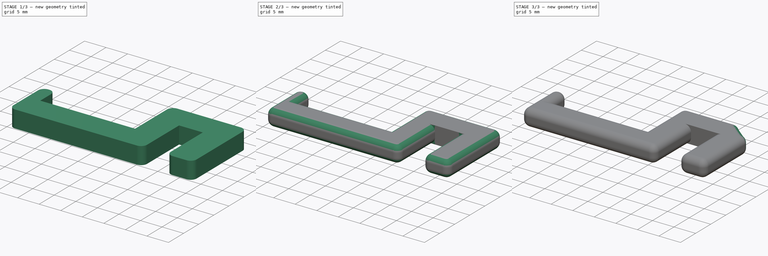
[diagram: build sequence overview — one tinted view per stage of 3, left to right]
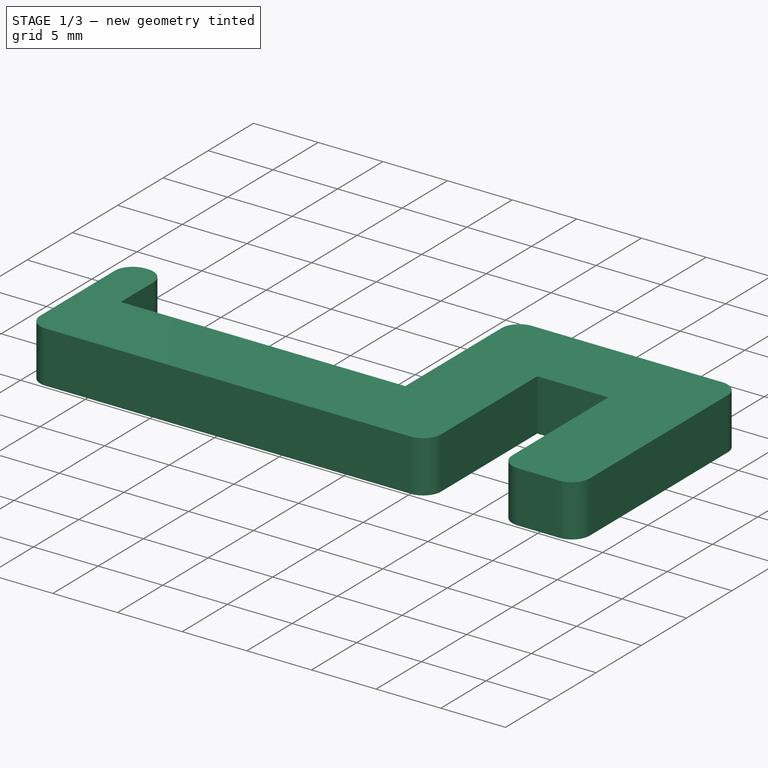
[diagram: stage 1 of 3 — iso view after this stage's code; geometry added in this stage tinted green]
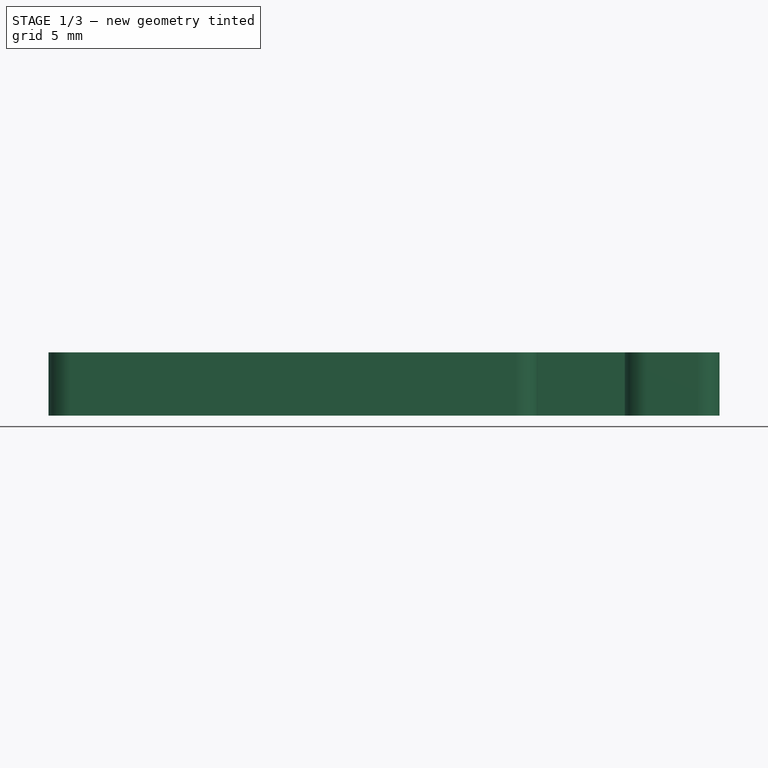
[diagram: stage 1 of 3 — front view after this stage's code; geometry added in this stage tinted green]
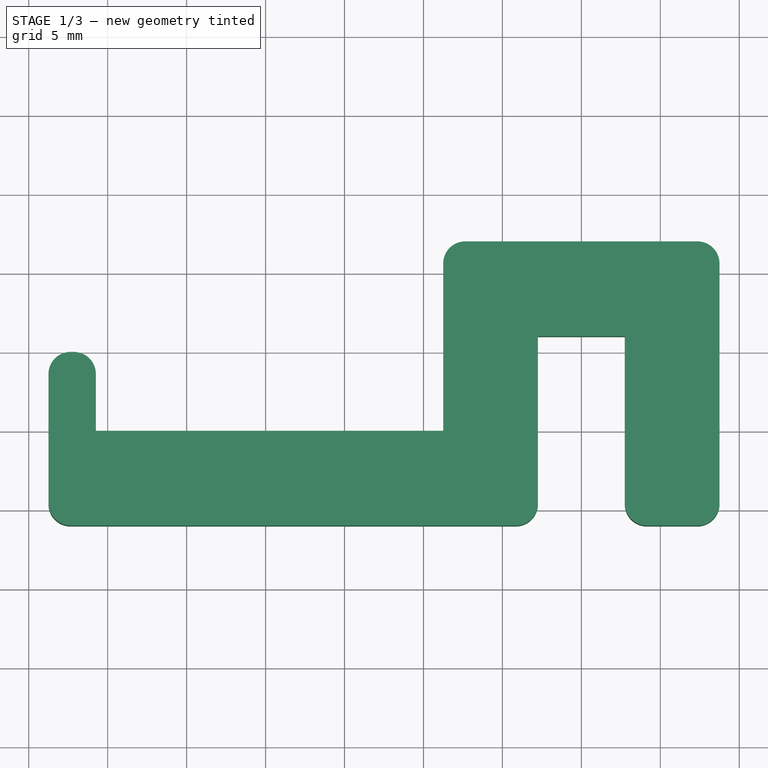
[diagram: stage 1 of 3 — top view after this stage's code; geometry added in this stage tinted green]
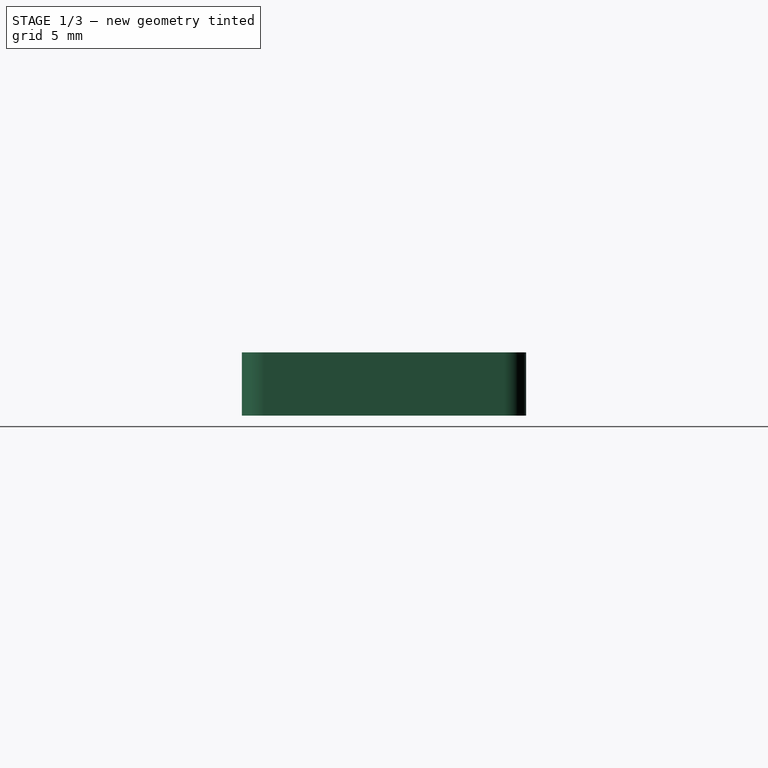
[diagram: stage 1 of 3 — right view after this stage's code; geometry added in this stage tinted green]
FCSTD DOCUMENT  (FreeCAD 0.21R33694 (Git))
Label: 宜家洞洞板-钳表挂钩
License: All rights reserved
LicenseURL: http://en.wikipedia.org/wiki/All_rights_reserved
objects: PartDesign::Fillet×3, Sketcher::SketchObject×2, PartDesign::Pad×1, PartDesign::Pocket×1, PartDesign::Body×1
note: 13 computed .brp shape members not serialized (recipe doc carries the construction recipe); baked Part::Feature solids carry a one-line shape summary decoded from their .brp

FEATURE [Sketcher::SketchObject] Sketch
  FullyConstrained = true
  MapMode = 5
  Support = -> [XY_Plane]
  sketch-geometry (13):
    g0: LineSegment StartX=2.75 StartY=-6 StartZ=0 EndX=8.75 EndY=-6 EndZ=0
    g1: LineSegment StartX=8.75 StartY=-6 StartZ=0 EndX=8.75 EndY=12 EndZ=0
    g2: LineSegment StartX=8.75 StartY=12 StartZ=0 EndX=-8.75 EndY=12 EndZ=0
    g3: LineSegment StartX=-2.75 StartY=-6 StartZ=0 EndX=-2.75 EndY=6 EndZ=0
    g4: LineSegment StartX=-2.75 StartY=6 StartZ=0 EndX=2.75 EndY=6 EndZ=0
    g5: LineSegment StartX=2.75 StartY=6 StartZ=0 EndX=2.75 EndY=-6 EndZ=0
    g6: LineSegment StartX=-8.75 StartY=12 StartZ=0 EndX=-8.75 EndY=0 EndZ=0
    g7: LineSegment StartX=-33.75 StartY=0 StartZ=0 EndX=-33.75 EndY=-6 EndZ=0
    g8: LineSegment StartX=-33.75 StartY=-6 StartZ=0 EndX=-2.75 EndY=-6 EndZ=0
    g9: LineSegment StartX=-8.75 StartY=0 StartZ=0 EndX=-30.75 EndY=0 EndZ=0
    g10: LineSegment StartX=-30.75 StartY=0 StartZ=0 EndX=-30.75 EndY=5 EndZ=0
    g11: LineSegment StartX=-30.75 StartY=5 StartZ=0 EndX=-33.75 EndY=5 EndZ=0
    g12: LineSegment StartX=-33.75 StartY=5 StartZ=0 EndX=-33.75 EndY=0 EndZ=0
  constraints (38):
    c: Horizontal(g0)
    c: Coincident(g0,g1)
    c: Vertical(g1)
    c: Coincident(g1,g2)
    c: Horizontal(g2)
    c: Vertical(g3)
    c: Coincident(g3,g4)
    c: Horizontal(g4)
    c: Coincident(g4,g5)
    c: Coincident(g5,g0)
    c: Coincident(g2,g6)
    c: Vertical(g6)
    c: Vertical(g7)
    c: Coincident(g7,g8)
    c: Horizontal(g8)
    c: Vertical(g5)
    c: Coincident(g8,g3)
    c: DistanceX(g0,g0) = 6
    c: Distance(g4,g2) = 6
    c: Distance(g3,g6) = 6
    c: DistanceY(g7,g7) = 6
    c: Horizontal(g3,g0)
    c: DistanceX(g7,g6) = 25
    c: Distance(g3,g0) = 5.5
    c: Coincident(g6,g9)
    c: Horizontal(g9)
    c: Coincident(g9,g10)
    c: Vertical(g10)
    c: Coincident(g10,g11)
    c: Horizontal(g11)
    c: Coincident(g11,g12)
    c: Coincident(g12,g7)
    c: Vertical(g12)
    c: Horizontal(g9,g7)
    c: DistanceX(g11,g11) = 3
    c: DistanceY(g5,g5) = 12
    c: Symmetric(g4,g3,g-1)
    c: DistanceY(g10,g10) = 5
FEATURE [PartDesign::Pad] Pad
  Direction = (0,0,1)
  Length = 4
  Length2 = 10
  Profile = -> Sketch
  ReferenceAxis = -> Sketch [N_Axis]
  Type = 0
FEATURE [PartDesign::Fillet] Fillet
  Base = -> Pad [Edge5,Edge8,Edge1,Edge2,Edge29,Edge26,Edge20,Edge17]
  BaseFeature = -> Pad
  Radius = 1.4
  SupportTransform = false
  UseAllEdges = false
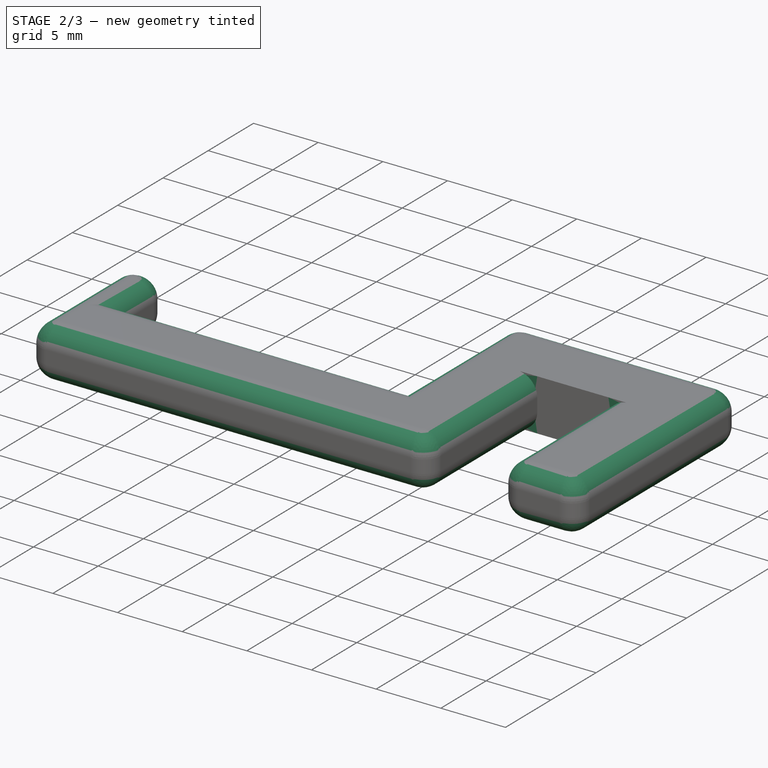
[diagram: stage 2 of 3 — iso view after this stage's code; geometry added in this stage tinted green]
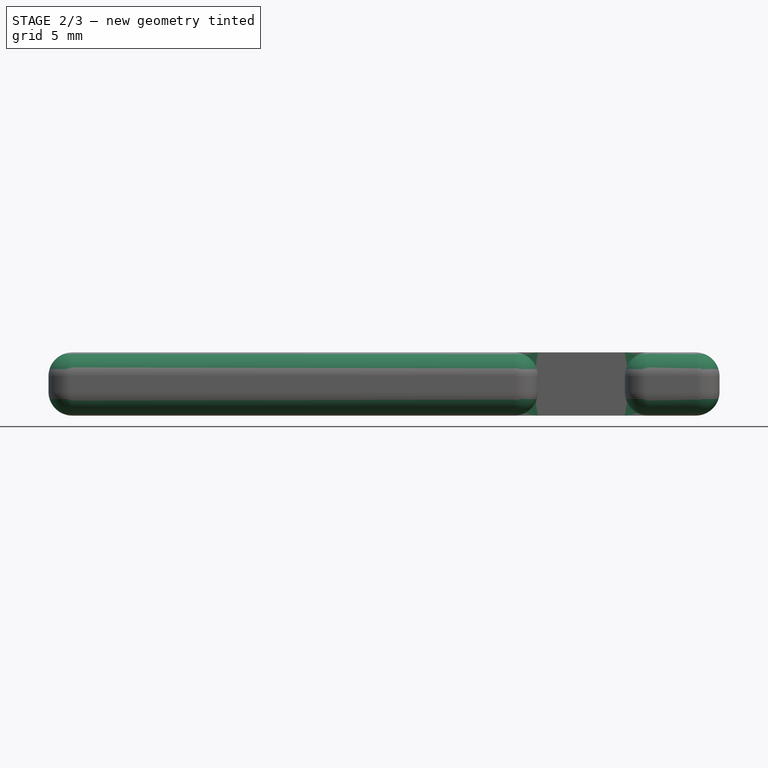
[diagram: stage 2 of 3 — front view after this stage's code; geometry added in this stage tinted green]
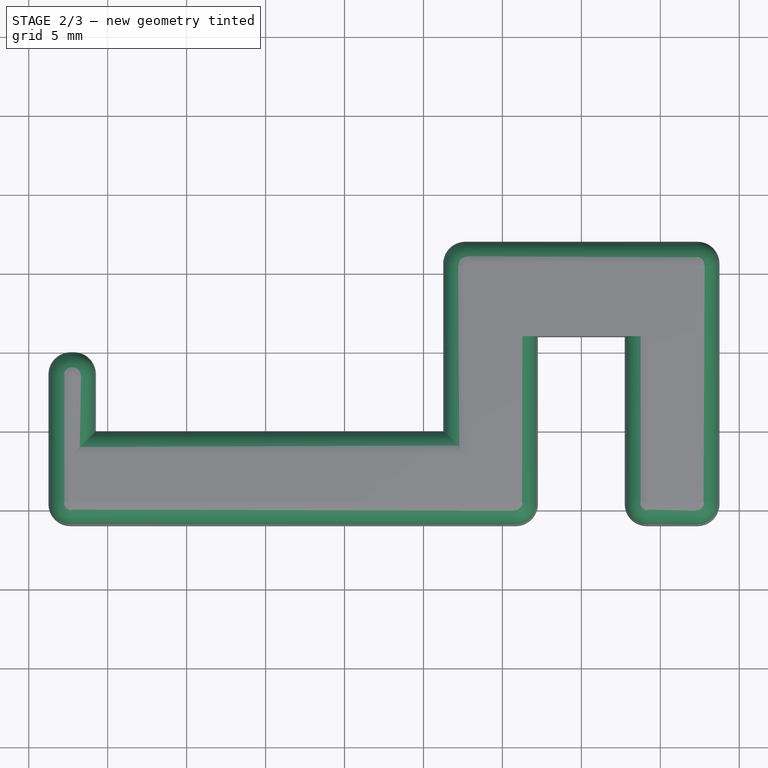
[diagram: stage 2 of 3 — top view after this stage's code; geometry added in this stage tinted green]
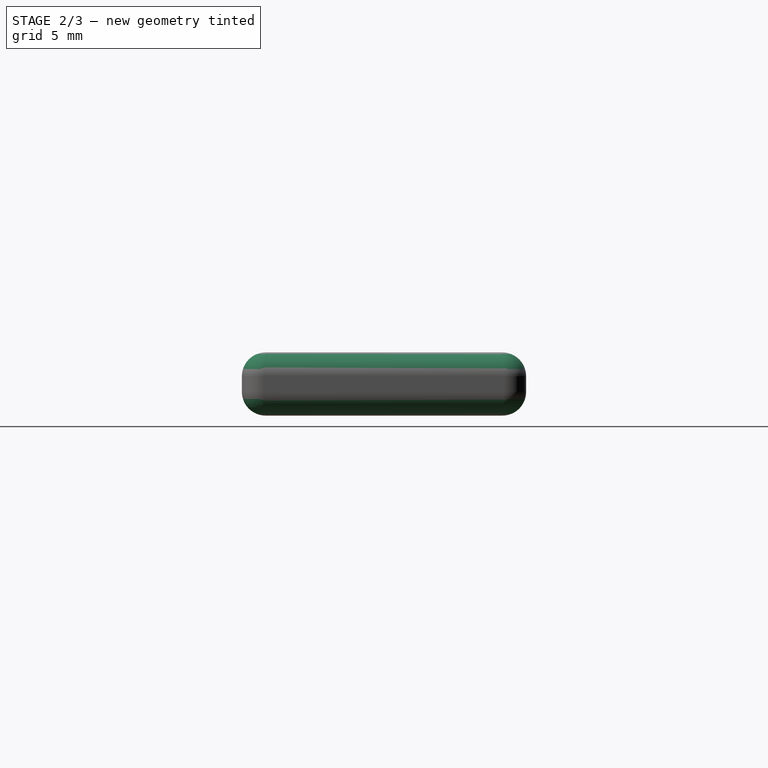
[diagram: stage 2 of 3 — right view after this stage's code; geometry added in this stage tinted green]
FEATURE [PartDesign::Fillet] Fillet001
  Base = -> Fillet [Edge36,Edge14,Edge28,Edge6,Edge37,Edge15,Edge40,Edge18,Edge45,Edge23]
  BaseFeature = -> Fillet
  Radius = 1.5
  SupportTransform = false
  UseAllEdges = false
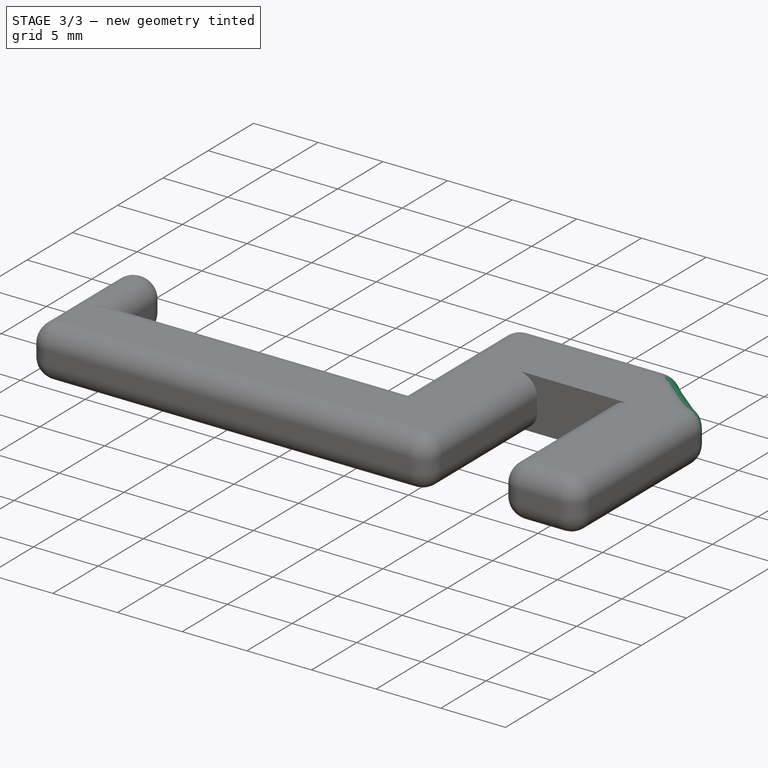
[diagram: stage 3 of 3 — iso view after this stage's code; geometry added in this stage tinted green]
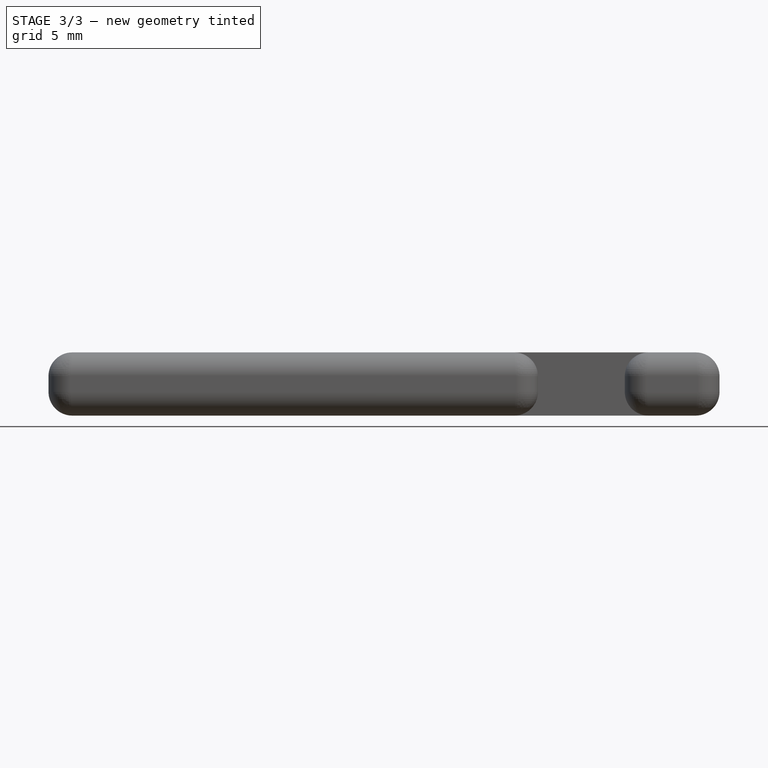
[diagram: stage 3 of 3 — front view after this stage's code; geometry added in this stage tinted green]
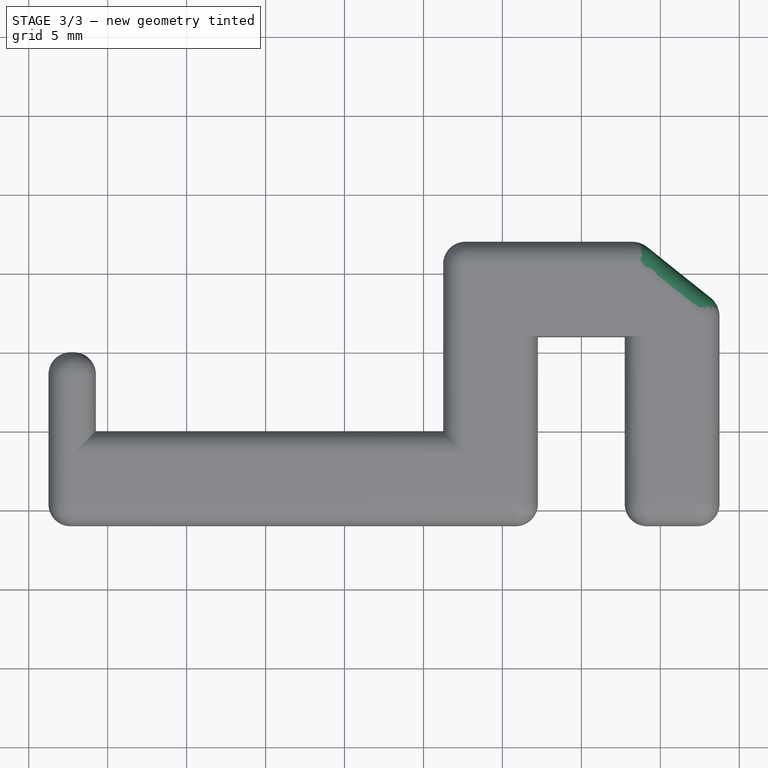
[diagram: stage 3 of 3 — top view after this stage's code; geometry added in this stage tinted green]
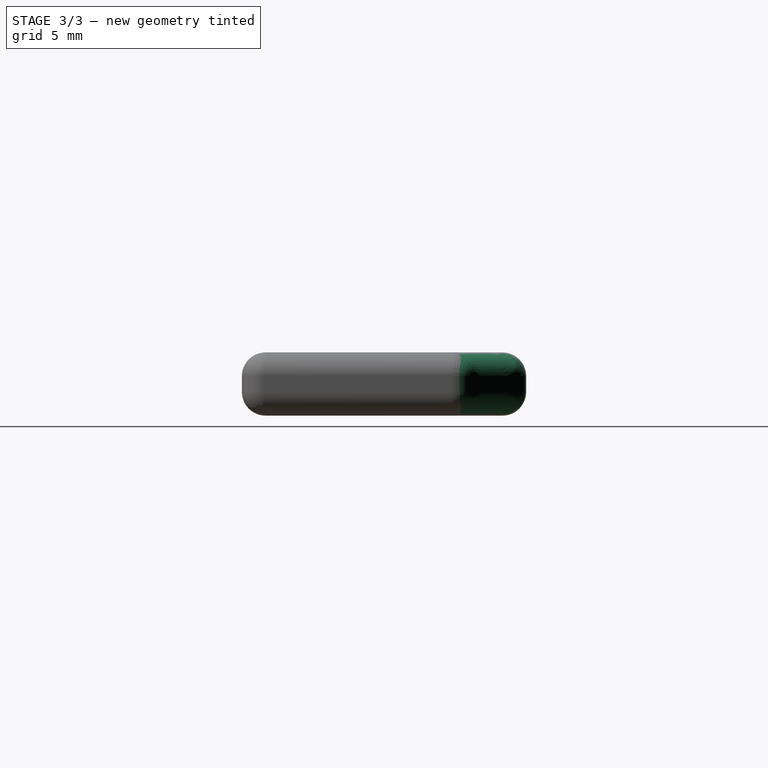
[diagram: stage 3 of 3 — right view after this stage's code; geometry added in this stage tinted green]
FEATURE [Sketcher::SketchObject] Sketch001
  ExternalGeometry = -> [Fillet001]
  FullyConstrained = true
  MapMode = 5
  Placement = pos=(0,0,4) rot=(0,0,1;0rad)
  Support = -> [Fillet001]
  sketch-geometry (3):
    g0: LineSegment StartX=3.75 StartY=12 StartZ=0 EndX=8.75 EndY=8 EndZ=0
    g1: LineSegment StartX=8.75 StartY=8 StartZ=0 EndX=8.75 EndY=12 EndZ=0
    g2: LineSegment StartX=8.75 StartY=12 StartZ=0 EndX=3.75 EndY=12 EndZ=0
  constraints (9):
    c: Coincident(g0,g1)
    c: Vertical(g1)
    c: Coincident(g1,g2)
    c: Coincident(g2,g0)
    c: Horizontal(g2)
    c: PointOnObject(g0,g-4)
    c: PointOnObject(g0,g-3)
    c: DistanceX(g2,g2) = 5
    c: DistanceY(g1,g1) = 4
FEATURE [PartDesign::Pocket] Pocket
  BaseFeature = -> Fillet001
  Direction = (0,0,-1)
  Length = 5
  Length2 = 5
  Profile = -> Sketch001
  ReferenceAxis = -> Sketch001 [N_Axis]
  Type = 0
FEATURE [PartDesign::Fillet] Fillet002
  Base = -> Pocket [Edge34]
  BaseFeature = -> Pocket
  Radius = 1.5
  SupportTransform = false
  UseAllEdges = false
FEATURE [PartDesign::Body] Body  label="实体"
  Group = -> [Sketch,Pad,Fillet,Fillet001,Sketch001,Pocket,Fillet002]
  Origin = -> Origin
  Tip = -> Fillet002
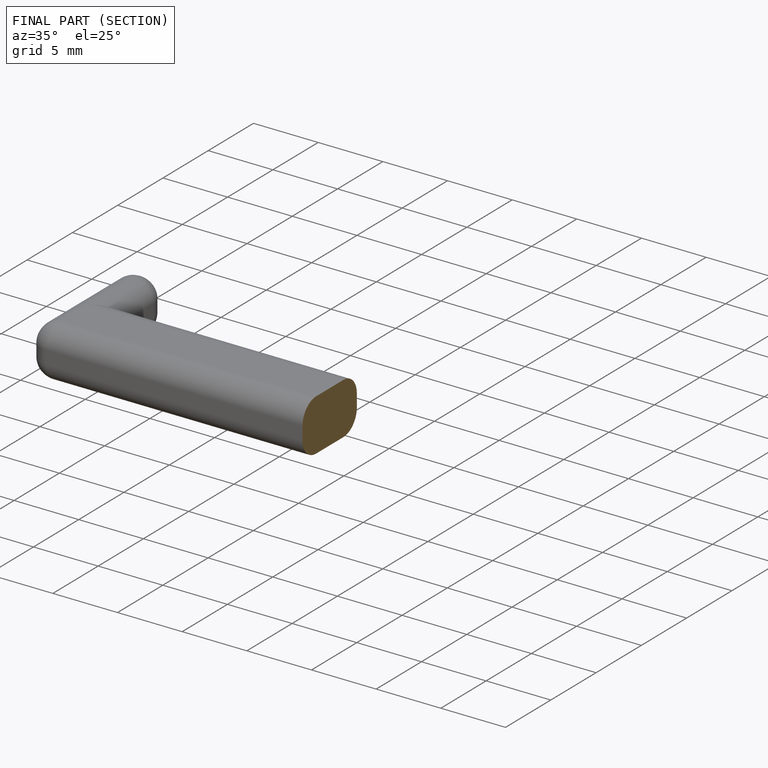
[diagram: finished part — half-section view (interior)]
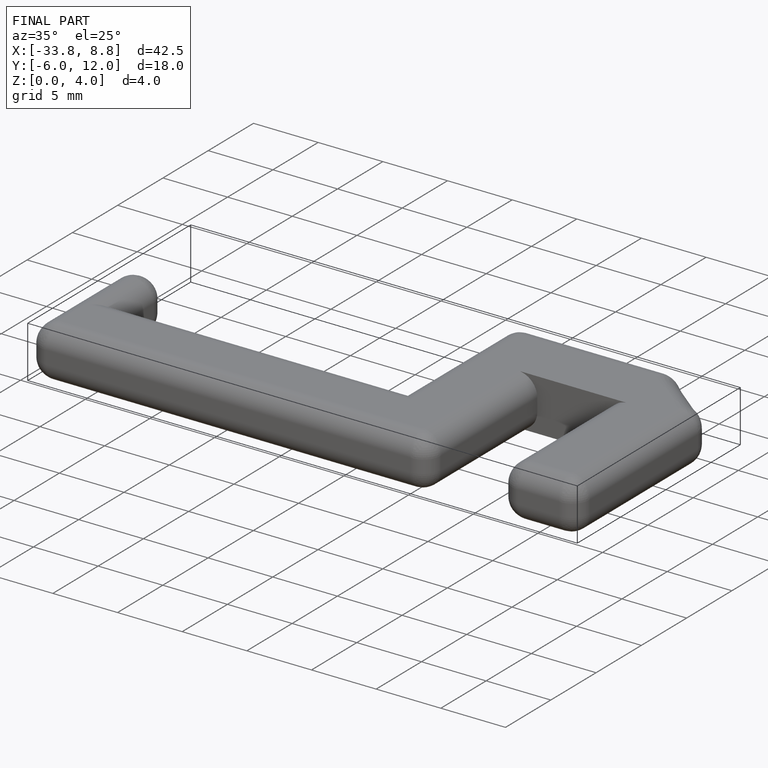
[diagram: finished part — iso view with bounding-box wireframe]
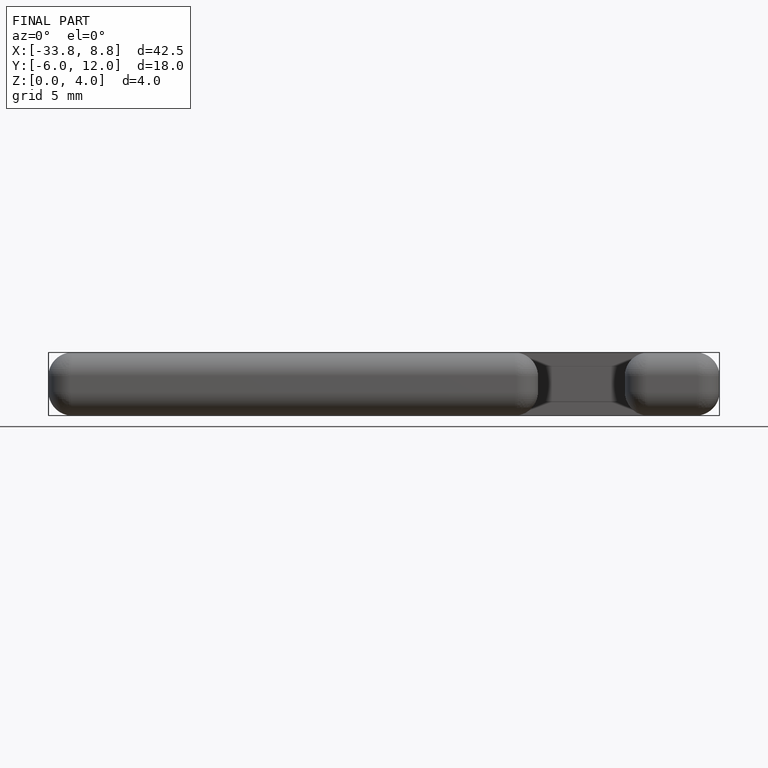
[diagram: finished part — front view with bounding-box wireframe]
